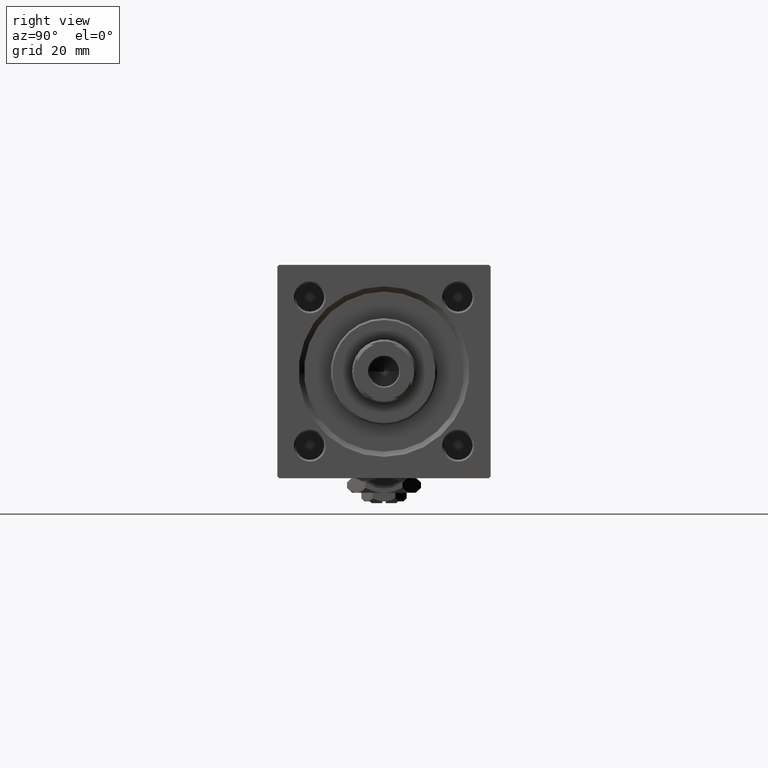
[diagram: clean part render]
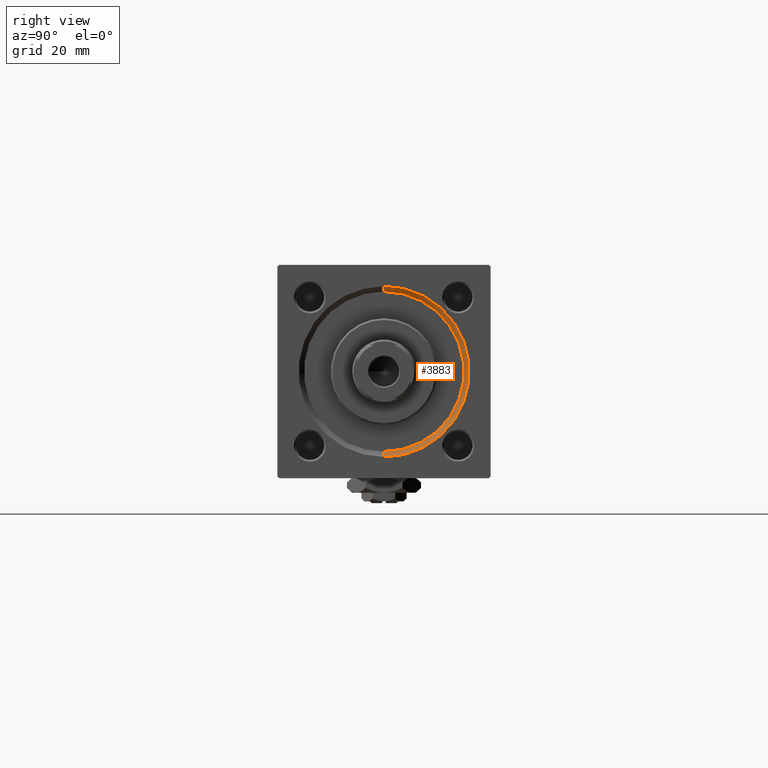
[diagram: same view with one face highlighted and labeled with its STEP entity id]
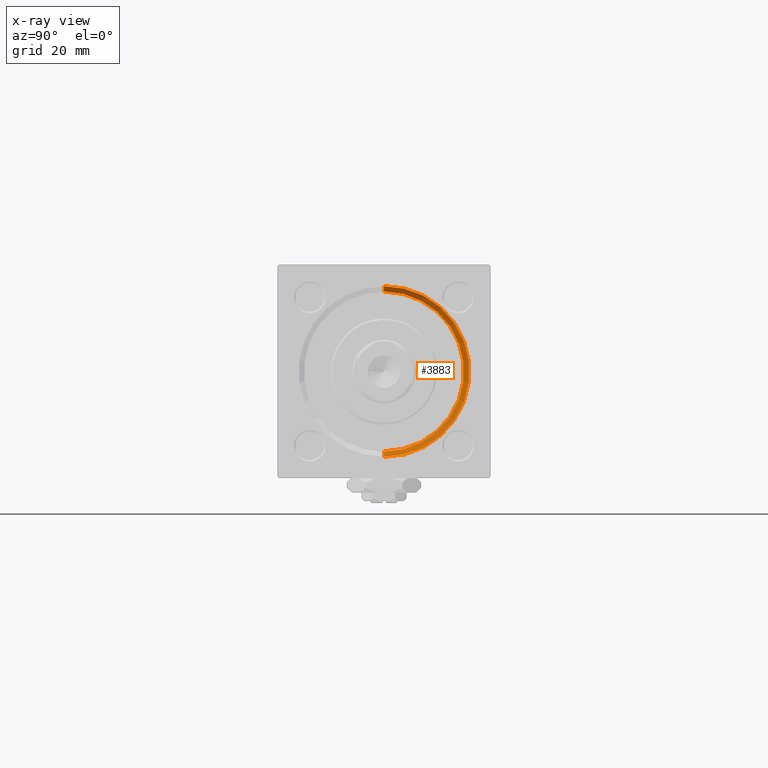
[diagram: x-ray of the same camera — body ghosted, the highlighted face saturated]
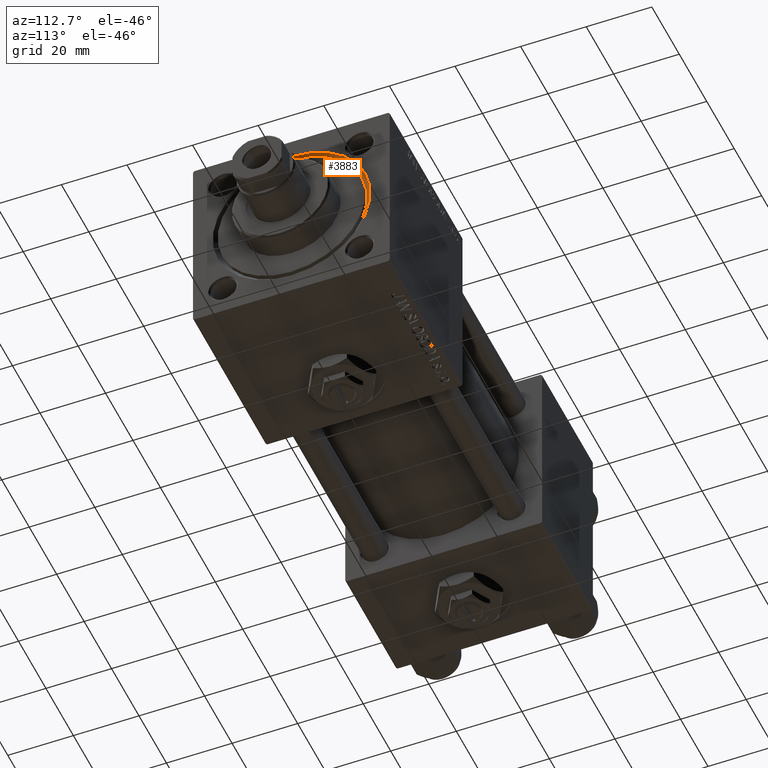
[diagram: same view with one face highlighted and labeled with its STEP entity id]
A machine part, right view. The second image highlights one B-rep face of the part: STEP entity #3883.
The next image is the same camera in x-ray: the body ghosted, the highlighted face saturated — about 0% of this face is hidden behind the body in this view.
A second angle (auxiliary view) of the same face is appended — the face is thin or edge-on in the first view.
In plain terms, the highlighted conical surface has half-angle 45 deg.
Its self-contained STEP definition (entity closure, byte-faithful):
#1367 = FACE_OUTER_BOUND ( 'NONE', #43867, .T. ) ;
#1789 = VERTEX_POINT ( 'NONE', #29560 ) ;
#2372 = VERTEX_POINT ( 'NONE', #23322 ) ;
#2923 = VERTEX_POINT ( 'NONE', #14155 ) ;
#3883 = ADVANCED_FACE ( 'NONE', ( #1367 ), #13269, .F. ) ;
#5149 = AXIS2_PLACEMENT_3D ( 'NONE', #37660, #13347, #13873 ) ;
#9137 = DIRECTION ( 'NONE',  ( 0.7071067811865524577, 8.659560562354874926E-17, 0.7071067811865426878 ) ) ;
#12189 = CARTESIAN_POINT ( 'NONE',  ( 146.4999999999999432, 0.000000000000000000, -22.50000000000000355 ) ) ;
#13269 = CONICAL_SURFACE ( 'NONE', #27616, 22.50000000000000355, 0.7853981633974415066 ) ;
#13347 = DIRECTION ( 'NONE',  ( -1.000000000000000000, 0.000000000000000000, -0.000000000000000000 ) ) ;
#13706 = CARTESIAN_POINT ( 'NONE',  ( 148.0000000000000000, 2.939152317953652628E-15, 24.00000000000003908 ) ) ;
#13873 = DIRECTION ( 'NONE',  ( 0.000000000000000000, 0.000000000000000000, 1.000000000000000000 ) ) ;
#14155 = CARTESIAN_POINT ( 'NONE',  ( 146.4999999999999432, 0.000000000000000000, -22.50000000000000355 ) ) ;
#14681 = EDGE_CURVE ( 'NONE', #2923, #1789, #48130, .T. ) ;
#16060 = VECTOR ( 'NONE', #28044, 1000.000000000000000 ) ;
#17235 = EDGE_CURVE ( 'NONE', #51080, #1789, #18650, .T. ) ;
#17479 = CARTESIAN_POINT ( 'NONE',  ( 146.4999999999999432, 0.000000000000000000, 0.000000000000000000 ) ) ;
#17630 = AXIS2_PLACEMENT_3D ( 'NONE', #29374, #46010, #25919 ) ;
#17726 = ORIENTED_EDGE ( 'NONE', *, *, #17235, .F. ) ;
#18650 = CIRCLE ( 'NONE', #5149, 24.00000000000003908 ) ;
#23322 = CARTESIAN_POINT ( 'NONE',  ( 146.4999999999999432, 2.755455298081545172E-15, 22.50000000000000355 ) ) ;
#24303 = ORIENTED_EDGE ( 'NONE', *, *, #14681, .T. ) ;
#25919 = DIRECTION ( 'NONE',  ( 0.000000000000000000, 0.000000000000000000, 1.000000000000000000 ) ) ;
#26303 = ORIENTED_EDGE ( 'NONE', *, *, #36092, .F. ) ;
#27616 = AXIS2_PLACEMENT_3D ( 'NONE', #17479, #29915, #45762 ) ;
#28044 = DIRECTION ( 'NONE',  ( 0.7071067811865524577, 0.000000000000000000, -0.7071067811865426878 ) ) ;
#29374 = CARTESIAN_POINT ( 'NONE',  ( 146.4999999999999432, 0.000000000000000000, 0.000000000000000000 ) ) ;
#29560 = CARTESIAN_POINT ( 'NONE',  ( 148.0000000000000000, 0.000000000000000000, -24.00000000000003908 ) ) ;
#29915 = DIRECTION ( 'NONE',  ( 1.000000000000000000, 0.000000000000000000, 0.000000000000000000 ) ) ;
#31422 = EDGE_CURVE ( 'NONE', #2923, #2372, #48011, .T. ) ;
#36092 = EDGE_CURVE ( 'NONE', #2372, #51080, #37926, .T. ) ;
#37660 = CARTESIAN_POINT ( 'NONE',  ( 148.0000000000000000, 0.000000000000000000, 0.000000000000000000 ) ) ;
#37926 = LINE ( 'NONE', #49568, #39635 ) ;
#39635 = VECTOR ( 'NONE', #9137, 1000.000000000000000 ) ;
#43867 = EDGE_LOOP ( 'NONE', ( #26303, #46372, #24303, #17726 ) ) ;
#45762 = DIRECTION ( 'NONE',  ( 0.000000000000000000, 0.000000000000000000, -1.000000000000000000 ) ) ;
#46010 = DIRECTION ( 'NONE',  ( 1.000000000000000000, 0.000000000000000000, 0.000000000000000000 ) ) ;
#46372 = ORIENTED_EDGE ( 'NONE', *, *, #31422, .F. ) ;
#48011 = CIRCLE ( 'NONE', #17630, 22.50000000000000355 ) ;
#48130 = LINE ( 'NONE', #12189, #16060 ) ;
#49568 = CARTESIAN_POINT ( 'NONE',  ( 146.4999999999999432, 2.755455298081545172E-15, 22.50000000000000355 ) ) ;
#51080 = VERTEX_POINT ( 'NONE', #13706 ) ;